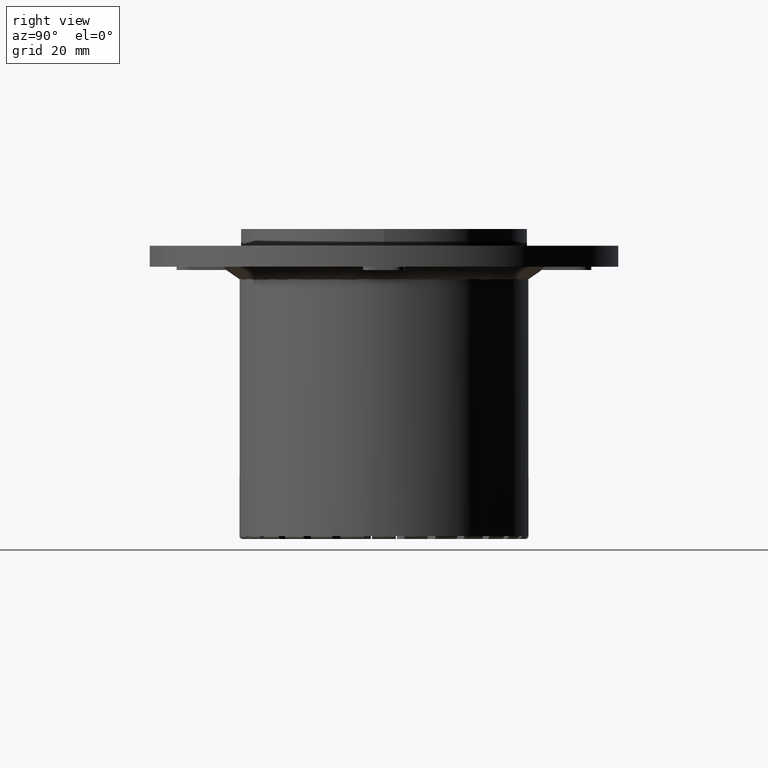
[diagram: clean part render]
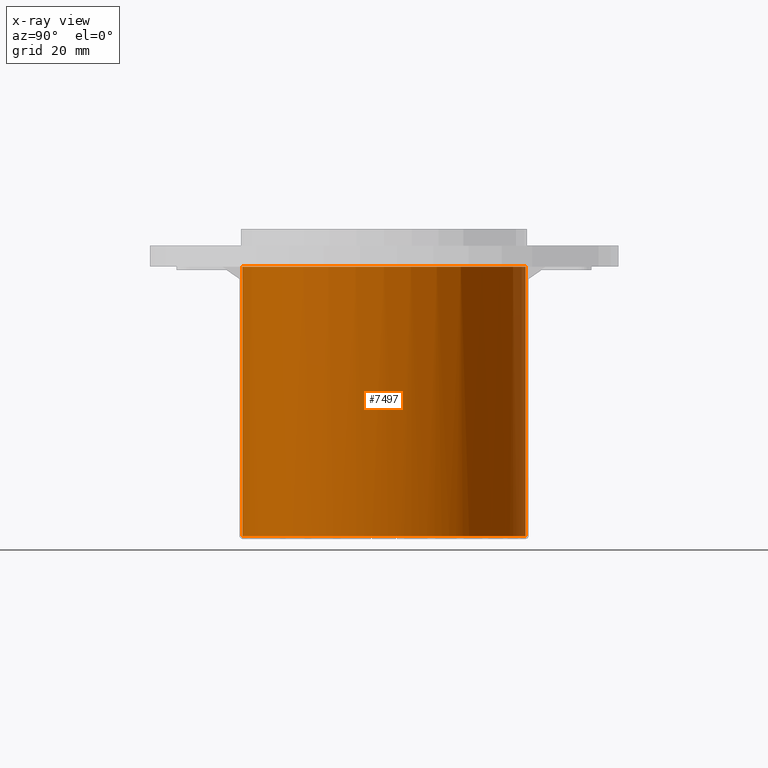
[diagram: x-ray — body ghosted, one internal face saturated and labeled with its STEP entity id]
A machine part, right view, then the same camera in x-ray: the body is ghosted and one INTERNAL B-rep face — a face not visible from any outside direction — is saturated and labeled: STEP entity #7497.
In plain terms, the highlighted cylindrical surface (bore or boss wall) has radius 33.8 mm, axis along (0, 0, 1).
Its self-contained STEP definition (entity closure, byte-faithful):
#747=CARTESIAN_POINT('',(10.272967348810127,32.201027030985841,0.0));
#748=VERTEX_POINT('',#747);
#1472=CARTESIAN_POINT('',(17.180805218574996,29.10772976446955,0.0));
#1473=VERTEX_POINT('',#1472);
#1557=CARTESIAN_POINT('',(23.227125773885678,24.554849384268188,0.0));
#1558=VERTEX_POINT('',#1557);
#1642=CARTESIAN_POINT('',(28.108741254862977,18.770686323817902,0.0));
#1643=VERTEX_POINT('',#1642);
#1727=CARTESIAN_POINT('',(31.580867077439628,12.045282671531204,0.0));
#1728=VERTEX_POINT('',#1727);
#1812=CARTESIAN_POINT('',(33.46939635453684,4.715878249373728,0.0));
#1813=VERTEX_POINT('',#1812);
#1897=CARTESIAN_POINT('',(33.679630342389451,-2.850000000000001,0.0));
#1898=VERTEX_POINT('',#1897);
#1982=CARTESIAN_POINT('',(32.201027030985841,-10.272967348810123,0.0));
#1983=VERTEX_POINT('',#1982);
#2067=CARTESIAN_POINT('',(29.10772976446955,-17.180805218574996,0.0));
#2068=VERTEX_POINT('',#2067);
#2152=CARTESIAN_POINT('',(24.554849384268188,-23.227125773885678,0.0));
#2153=VERTEX_POINT('',#2152);
#2237=CARTESIAN_POINT('',(18.770686323817902,-28.108741254862977,0.0));
#2238=VERTEX_POINT('',#2237);
#2322=CARTESIAN_POINT('',(12.045282671531204,-31.580867077439628,0.0));
#2323=VERTEX_POINT('',#2322);
#2407=CARTESIAN_POINT('',(4.715878249373731,-33.46939635453684,0.0));
#2408=VERTEX_POINT('',#2407);
#2492=CARTESIAN_POINT('',(-2.849999999999997,-33.679630342389451,0.0));
#2493=VERTEX_POINT('',#2492);
#2577=CARTESIAN_POINT('',(-10.272967348810123,-32.201027030985841,0.0));
#2578=VERTEX_POINT('',#2577);
#2662=CARTESIAN_POINT('',(-17.180805218574992,-29.10772976446955,0.0));
#2663=VERTEX_POINT('',#2662);
#2747=CARTESIAN_POINT('',(-23.227125773885675,-24.554849384268191,0.0));
#2748=VERTEX_POINT('',#2747);
#2832=CARTESIAN_POINT('',(-28.10874125486297,-18.770686323817905,0.0));
#2833=VERTEX_POINT('',#2832);
#2917=CARTESIAN_POINT('',(-31.580867077439628,-12.045282671531204,0.0));
#2918=VERTEX_POINT('',#2917);
#3002=CARTESIAN_POINT('',(-33.46939635453684,-4.715878249373732,0.0));
#3003=VERTEX_POINT('',#3002);
#3087=CARTESIAN_POINT('',(-33.679630342389451,2.849999999999997,0.0));
#3088=VERTEX_POINT('',#3087);
#3172=CARTESIAN_POINT('',(-32.201027030985841,10.272967348810123,0.0));
#3173=VERTEX_POINT('',#3172);
#3257=CARTESIAN_POINT('',(-29.10772976446955,17.180805218574989,0.0));
#3258=VERTEX_POINT('',#3257);
#3342=CARTESIAN_POINT('',(-24.554849384268195,23.227125773885668,0.0));
#3343=VERTEX_POINT('',#3342);
#3427=CARTESIAN_POINT('',(-18.770686323817905,28.10874125486297,0.0));
#3428=VERTEX_POINT('',#3427);
#3512=CARTESIAN_POINT('',(-12.045282671531208,31.580867077439628,0.0));
#3513=VERTEX_POINT('',#3512);
#3613=CARTESIAN_POINT('',(-10.272967348810127,32.201027030985841,0.0));
#3614=VERTEX_POINT('',#3613);
#3674=CARTESIAN_POINT('',(4.715878249373729,33.46939635453684,0.0));
#3675=VERTEX_POINT('',#3674);
#3708=CARTESIAN_POINT('',(0.0,0.0,0.0));
#3709=DIRECTION('',(0.0,0.0,1.0));
#3710=DIRECTION('',(-1.0,0.0,0.0));
#3711=AXIS2_PLACEMENT_3D('',#3708,#3709,#3710);
#3712=CIRCLE('',#3711,33.800000000000004);
#3713=EDGE_CURVE('',#748,#3675,#3712,.T.);
#3765=CARTESIAN_POINT('',(12.045282671531208,31.580867077439628,0.0));
#3766=VERTEX_POINT('',#3765);
#3799=CARTESIAN_POINT('',(0.0,0.0,0.0));
#3800=DIRECTION('',(0.0,0.0,1.0));
#3801=DIRECTION('',(-1.0,0.0,0.0));
#3802=AXIS2_PLACEMENT_3D('',#3799,#3800,#3801);
#3803=CIRCLE('',#3802,33.800000000000004);
#3804=EDGE_CURVE('',#1473,#3766,#3803,.T.);
#3856=CARTESIAN_POINT('',(18.770686323817905,28.108741254862974,0.0));
#3857=VERTEX_POINT('',#3856);
#3890=CARTESIAN_POINT('',(0.0,0.0,0.0));
#3891=DIRECTION('',(0.0,0.0,1.0));
#3892=DIRECTION('',(-1.0,0.0,0.0));
#3893=AXIS2_PLACEMENT_3D('',#3890,#3891,#3892);
#3894=CIRCLE('',#3893,33.800000000000004);
#3895=EDGE_CURVE('',#1558,#3857,#3894,.T.);
#3947=CARTESIAN_POINT('',(24.554849384268191,23.227125773885675,0.0));
#3948=VERTEX_POINT('',#3947);
#3981=CARTESIAN_POINT('',(0.0,0.0,0.0));
#3982=DIRECTION('',(0.0,0.0,1.0));
#3983=DIRECTION('',(-1.0,0.0,0.0));
#3984=AXIS2_PLACEMENT_3D('',#3981,#3982,#3983);
#3985=CIRCLE('',#3984,33.800000000000004);
#3986=EDGE_CURVE('',#1643,#3948,#3985,.T.);
#4038=CARTESIAN_POINT('',(29.10772976446955,17.180805218574989,0.0));
#4039=VERTEX_POINT('',#4038);
#4072=CARTESIAN_POINT('',(0.0,0.0,0.0));
#4073=DIRECTION('',(0.0,0.0,1.0));
#4074=DIRECTION('',(-1.0,0.0,0.0));
#4075=AXIS2_PLACEMENT_3D('',#4072,#4073,#4074);
#4076=CIRCLE('',#4075,33.800000000000004);
#4077=EDGE_CURVE('',#1728,#4039,#4076,.T.);
#4129=CARTESIAN_POINT('',(32.201027030985848,10.272967348810123,0.0));
#4130=VERTEX_POINT('',#4129);
#4163=CARTESIAN_POINT('',(0.0,0.0,0.0));
#4164=DIRECTION('',(0.0,0.0,1.0));
#4165=DIRECTION('',(-1.0,0.0,0.0));
#4166=AXIS2_PLACEMENT_3D('',#4163,#4164,#4165);
#4167=CIRCLE('',#4166,33.800000000000004);
#4168=EDGE_CURVE('',#1813,#4130,#4167,.T.);
#4220=CARTESIAN_POINT('',(33.679630342389451,2.850000000000001,0.0));
#4221=VERTEX_POINT('',#4220);
#4254=CARTESIAN_POINT('',(0.0,0.0,0.0));
#4255=DIRECTION('',(0.0,0.0,1.0));
#4256=DIRECTION('',(-1.0,0.0,0.0));
#4257=AXIS2_PLACEMENT_3D('',#4254,#4255,#4256);
#4258=CIRCLE('',#4257,33.800000000000004);
#4259=EDGE_CURVE('',#1898,#4221,#4258,.T.);
#4311=CARTESIAN_POINT('',(33.46939635453684,-4.715878249373724,0.0));
#4312=VERTEX_POINT('',#4311);
#4345=CARTESIAN_POINT('',(0.0,0.0,0.0));
#4346=DIRECTION('',(0.0,0.0,1.0));
#4347=DIRECTION('',(-1.0,0.0,0.0));
#4348=AXIS2_PLACEMENT_3D('',#4345,#4346,#4347);
#4349=CIRCLE('',#4348,33.800000000000004);
#4350=EDGE_CURVE('',#1983,#4312,#4349,.T.);
#4402=CARTESIAN_POINT('',(31.580867077439628,-12.045282671531208,0.0));
#4403=VERTEX_POINT('',#4402);
#4436=CARTESIAN_POINT('',(0.0,0.0,0.0));
#4437=DIRECTION('',(0.0,0.0,1.0));
#4438=DIRECTION('',(-1.0,0.0,0.0));
#4439=AXIS2_PLACEMENT_3D('',#4436,#4437,#4438);
#4440=CIRCLE('',#4439,33.800000000000004);
#4441=EDGE_CURVE('',#2068,#4403,#4440,.T.);
#4493=CARTESIAN_POINT('',(28.108741254862974,-18.770686323817905,0.0));
#4494=VERTEX_POINT('',#4493);
#4527=CARTESIAN_POINT('',(0.0,0.0,0.0));
#4528=DIRECTION('',(0.0,0.0,1.0));
#4529=DIRECTION('',(-1.0,0.0,0.0));
#4530=AXIS2_PLACEMENT_3D('',#4527,#4528,#4529);
#4531=CIRCLE('',#4530,33.800000000000004);
#4532=EDGE_CURVE('',#2153,#4494,#4531,.T.);
#4584=CARTESIAN_POINT('',(23.227125773885675,-24.554849384268191,0.0));
#4585=VERTEX_POINT('',#4584);
#4618=CARTESIAN_POINT('',(0.0,0.0,0.0));
#4619=DIRECTION('',(0.0,0.0,1.0));
#4620=DIRECTION('',(-1.0,0.0,0.0));
#4621=AXIS2_PLACEMENT_3D('',#4618,#4619,#4620);
#4622=CIRCLE('',#4621,33.800000000000004);
#4623=EDGE_CURVE('',#2238,#4585,#4622,.T.);
#4675=CARTESIAN_POINT('',(17.180805218574996,-29.10772976446955,0.0));
#4676=VERTEX_POINT('',#4675);
#4709=CARTESIAN_POINT('',(0.0,0.0,0.0));
#4710=DIRECTION('',(0.0,0.0,1.0));
#4711=DIRECTION('',(-1.0,0.0,0.0));
#4712=AXIS2_PLACEMENT_3D('',#4709,#4710,#4711);
#4713=CIRCLE('',#4712,33.800000000000004);
#4714=EDGE_CURVE('',#2323,#4676,#4713,.T.);
#4766=CARTESIAN_POINT('',(10.272967348810123,-32.201027030985841,0.0));
#4767=VERTEX_POINT('',#4766);
#4800=CARTESIAN_POINT('',(0.0,0.0,0.0));
#4801=DIRECTION('',(0.0,0.0,1.0));
#4802=DIRECTION('',(-1.0,0.0,0.0));
#4803=AXIS2_PLACEMENT_3D('',#4800,#4801,#4802);
#4804=CIRCLE('',#4803,33.800000000000004);
#4805=EDGE_CURVE('',#2408,#4767,#4804,.T.);
#4857=CARTESIAN_POINT('',(2.850000000000001,-33.679630342389451,0.0));
#4858=VERTEX_POINT('',#4857);
#4891=CARTESIAN_POINT('',(0.0,0.0,0.0));
#4892=DIRECTION('',(0.0,0.0,1.0));
#4893=DIRECTION('',(-1.0,0.0,0.0));
#4894=AXIS2_PLACEMENT_3D('',#4891,#4892,#4893);
#4895=CIRCLE('',#4894,33.800000000000004);
#4896=EDGE_CURVE('',#2493,#4858,#4895,.T.);
#4948=CARTESIAN_POINT('',(-4.715878249373726,-33.46939635453684,0.0));
#4949=VERTEX_POINT('',#4948);
#4982=CARTESIAN_POINT('',(0.0,0.0,0.0));
#4983=DIRECTION('',(0.0,0.0,1.0));
#4984=DIRECTION('',(-1.0,0.0,0.0));
#4985=AXIS2_PLACEMENT_3D('',#4982,#4983,#4984);
#4986=CIRCLE('',#4985,33.800000000000004);
#4987=EDGE_CURVE('',#2578,#4949,#4986,.T.);
#5039=CARTESIAN_POINT('',(-12.045282671531206,-31.580867077439628,0.0));
#5040=VERTEX_POINT('',#5039);
#5073=CARTESIAN_POINT('',(0.0,0.0,0.0));
#5074=DIRECTION('',(0.0,0.0,1.0));
#5075=DIRECTION('',(-1.0,0.0,0.0));
#5076=AXIS2_PLACEMENT_3D('',#5073,#5074,#5075);
#5077=CIRCLE('',#5076,33.800000000000004);
#5078=EDGE_CURVE('',#2663,#5040,#5077,.T.);
#5130=CARTESIAN_POINT('',(-18.770686323817898,-28.10874125486297,0.0));
#5131=VERTEX_POINT('',#5130);
#5164=CARTESIAN_POINT('',(0.0,0.0,0.0));
#5165=DIRECTION('',(0.0,0.0,1.0));
#5166=DIRECTION('',(-1.0,0.0,0.0));
#5167=AXIS2_PLACEMENT_3D('',#5164,#5165,#5166);
#5168=CIRCLE('',#5167,33.800000000000004);
#5169=EDGE_CURVE('',#2748,#5131,#5168,.T.);
#5221=CARTESIAN_POINT('',(-24.554849384268191,-23.227125773885675,0.0));
#5222=VERTEX_POINT('',#5221);
#5255=CARTESIAN_POINT('',(0.0,0.0,0.0));
#5256=DIRECTION('',(0.0,0.0,1.0));
#5257=DIRECTION('',(-1.0,0.0,0.0));
#5258=AXIS2_PLACEMENT_3D('',#5255,#5256,#5257);
#5259=CIRCLE('',#5258,33.800000000000004);
#5260=EDGE_CURVE('',#2833,#5222,#5259,.T.);
#5312=CARTESIAN_POINT('',(-29.10772976446955,-17.180805218574996,0.0));
#5313=VERTEX_POINT('',#5312);
#5346=CARTESIAN_POINT('',(0.0,0.0,0.0));
#5347=DIRECTION('',(0.0,0.0,1.0));
#5348=DIRECTION('',(-1.0,0.0,0.0));
#5349=AXIS2_PLACEMENT_3D('',#5346,#5347,#5348);
#5350=CIRCLE('',#5349,33.800000000000004);
#5351=EDGE_CURVE('',#2918,#5313,#5350,.T.);
#5403=CARTESIAN_POINT('',(-32.201027030985841,-10.272967348810125,0.0));
#5404=VERTEX_POINT('',#5403);
#5437=CARTESIAN_POINT('',(0.0,0.0,0.0));
#5438=DIRECTION('',(0.0,0.0,1.0));
#5439=DIRECTION('',(-1.0,0.0,0.0));
#5440=AXIS2_PLACEMENT_3D('',#5437,#5438,#5439);
#5441=CIRCLE('',#5440,33.800000000000004);
#5442=EDGE_CURVE('',#3003,#5404,#5441,.T.);
#5494=CARTESIAN_POINT('',(-33.679630342389451,-2.850000000000002,0.0));
#5495=VERTEX_POINT('',#5494);
#5528=CARTESIAN_POINT('',(0.0,0.0,0.0));
#5529=DIRECTION('',(0.0,0.0,1.0));
#5530=DIRECTION('',(-1.0,0.0,0.0));
#5531=AXIS2_PLACEMENT_3D('',#5528,#5529,#5530);
#5532=CIRCLE('',#5531,33.800000000000004);
#5533=EDGE_CURVE('',#3088,#5495,#5532,.T.);
#5585=CARTESIAN_POINT('',(-33.46939635453684,4.715878249373725,0.0));
#5586=VERTEX_POINT('',#5585);
#5619=CARTESIAN_POINT('',(0.0,0.0,0.0));
#5620=DIRECTION('',(0.0,0.0,1.0));
#5621=DIRECTION('',(-1.0,0.0,0.0));
#5622=AXIS2_PLACEMENT_3D('',#5619,#5620,#5621);
#5623=CIRCLE('',#5622,33.800000000000004);
#5624=EDGE_CURVE('',#3173,#5586,#5623,.T.);
#5676=CARTESIAN_POINT('',(-31.580867077439628,12.045282671531201,0.0));
#5677=VERTEX_POINT('',#5676);
#5710=CARTESIAN_POINT('',(0.0,0.0,0.0));
#5711=DIRECTION('',(0.0,0.0,1.0));
#5712=DIRECTION('',(-1.0,0.0,0.0));
#5713=AXIS2_PLACEMENT_3D('',#5710,#5711,#5712);
#5714=CIRCLE('',#5713,33.800000000000004);
#5715=EDGE_CURVE('',#3258,#5677,#5714,.T.);
#5767=CARTESIAN_POINT('',(-28.10874125486297,18.770686323817902,0.0));
#5768=VERTEX_POINT('',#5767);
#5801=CARTESIAN_POINT('',(0.0,0.0,0.0));
#5802=DIRECTION('',(0.0,0.0,1.0));
#5803=DIRECTION('',(-1.0,0.0,0.0));
#5804=AXIS2_PLACEMENT_3D('',#5801,#5802,#5803);
#5805=CIRCLE('',#5804,33.800000000000004);
#5806=EDGE_CURVE('',#3343,#5768,#5805,.T.);
#5858=CARTESIAN_POINT('',(-23.227125773885682,24.554849384268181,0.0));
#5859=VERTEX_POINT('',#5858);
#5892=CARTESIAN_POINT('',(0.0,0.0,0.0));
#5893=DIRECTION('',(0.0,0.0,1.0));
#5894=DIRECTION('',(-1.0,0.0,0.0));
#5895=AXIS2_PLACEMENT_3D('',#5892,#5893,#5894);
#5896=CIRCLE('',#5895,33.800000000000004);
#5897=EDGE_CURVE('',#3428,#5859,#5896,.T.);
#5949=CARTESIAN_POINT('',(-17.180805218574996,29.10772976446955,0.0));
#5950=VERTEX_POINT('',#5949);
#5983=CARTESIAN_POINT('',(0.0,0.0,0.0));
#5984=DIRECTION('',(0.0,0.0,1.0));
#5985=DIRECTION('',(-1.0,0.0,0.0));
#5986=AXIS2_PLACEMENT_3D('',#5983,#5984,#5985);
#5987=CIRCLE('',#5986,33.800000000000004);
#5988=EDGE_CURVE('',#3513,#5950,#5987,.T.);
#6033=CARTESIAN_POINT('',(-4.715878249373734,33.46939635453684,0.0));
#6034=VERTEX_POINT('',#6033);
#6074=CARTESIAN_POINT('',(0.0,0.0,0.0));
#6075=DIRECTION('',(0.0,0.0,1.0));
#6076=DIRECTION('',(-1.0,0.0,0.0));
#6077=AXIS2_PLACEMENT_3D('',#6074,#6075,#6076);
#6078=CIRCLE('',#6077,33.800000000000004);
#6079=EDGE_CURVE('',#6034,#3614,#6078,.T.);
#6094=CARTESIAN_POINT('',(-2.850000000000005,33.679630342389451,0.0));
#6095=VERTEX_POINT('',#6094);
#6102=CARTESIAN_POINT('',(0.0,0.0,0.0));
#6103=DIRECTION('',(0.0,0.0,1.0));
#6104=DIRECTION('',(-1.0,0.0,0.0));
#6105=AXIS2_PLACEMENT_3D('',#6102,#6103,#6104);
#6106=CIRCLE('',#6105,33.800000000000004);
#6107=EDGE_CURVE('',#6095,#6034,#6106,.T.);
#6120=CARTESIAN_POINT('',(0.0,0.0,0.0));
#6121=DIRECTION('',(0.0,0.0,1.0));
#6122=DIRECTION('',(-1.0,0.0,0.0));
#6123=AXIS2_PLACEMENT_3D('',#6120,#6121,#6122);
#6124=CIRCLE('',#6123,33.800000000000004);
#6125=EDGE_CURVE('',#3614,#3513,#6124,.T.);
#6138=CARTESIAN_POINT('',(0.0,0.0,0.0));
#6139=DIRECTION('',(0.0,0.0,1.0));
#6140=DIRECTION('',(-1.0,0.0,0.0));
#6141=AXIS2_PLACEMENT_3D('',#6138,#6139,#6140);
#6142=CIRCLE('',#6141,33.800000000000004);
#6143=EDGE_CURVE('',#5950,#3428,#6142,.T.);
#6156=CARTESIAN_POINT('',(0.0,0.0,0.0));
#6157=DIRECTION('',(0.0,0.0,1.0));
#6158=DIRECTION('',(-1.0,0.0,0.0));
#6159=AXIS2_PLACEMENT_3D('',#6156,#6157,#6158);
#6160=CIRCLE('',#6159,33.800000000000004);
#6161=EDGE_CURVE('',#5859,#3343,#6160,.T.);
#6174=CARTESIAN_POINT('',(0.0,0.0,0.0));
#6175=DIRECTION('',(0.0,0.0,1.0));
#6176=DIRECTION('',(-1.0,0.0,0.0));
#6177=AXIS2_PLACEMENT_3D('',#6174,#6175,#6176);
#6178=CIRCLE('',#6177,33.800000000000004);
#6179=EDGE_CURVE('',#5768,#3258,#6178,.T.);
#6192=CARTESIAN_POINT('',(0.0,0.0,0.0));
#6193=DIRECTION('',(0.0,0.0,1.0));
#6194=DIRECTION('',(-1.0,0.0,0.0));
#6195=AXIS2_PLACEMENT_3D('',#6192,#6193,#6194);
#6196=CIRCLE('',#6195,33.800000000000004);
#6197=EDGE_CURVE('',#5677,#3173,#6196,.T.);
#6210=CARTESIAN_POINT('',(0.0,0.0,0.0));
#6211=DIRECTION('',(0.0,0.0,1.0));
#6212=DIRECTION('',(-1.0,0.0,0.0));
#6213=AXIS2_PLACEMENT_3D('',#6210,#6211,#6212);
#6214=CIRCLE('',#6213,33.800000000000004);
#6215=EDGE_CURVE('',#5586,#3088,#6214,.T.);
#6228=CARTESIAN_POINT('',(0.0,0.0,0.0));
#6229=DIRECTION('',(0.0,0.0,1.0));
#6230=DIRECTION('',(-1.0,0.0,0.0));
#6231=AXIS2_PLACEMENT_3D('',#6228,#6229,#6230);
#6232=CIRCLE('',#6231,33.800000000000004);
#6233=EDGE_CURVE('',#5495,#3003,#6232,.T.);
#6246=CARTESIAN_POINT('',(0.0,0.0,0.0));
#6247=DIRECTION('',(0.0,0.0,1.0));
#6248=DIRECTION('',(-1.0,0.0,0.0));
#6249=AXIS2_PLACEMENT_3D('',#6246,#6247,#6248);
#6250=CIRCLE('',#6249,33.800000000000004);
#6251=EDGE_CURVE('',#5404,#2918,#6250,.T.);
#6264=CARTESIAN_POINT('',(0.0,0.0,0.0));
#6265=DIRECTION('',(0.0,0.0,1.0));
#6266=DIRECTION('',(-1.0,0.0,0.0));
#6267=AXIS2_PLACEMENT_3D('',#6264,#6265,#6266);
#6268=CIRCLE('',#6267,33.800000000000004);
#6269=EDGE_CURVE('',#5313,#2833,#6268,.T.);
#6282=CARTESIAN_POINT('',(0.0,0.0,0.0));
#6283=DIRECTION('',(0.0,0.0,1.0));
#6284=DIRECTION('',(-1.0,0.0,0.0));
#6285=AXIS2_PLACEMENT_3D('',#6282,#6283,#6284);
#6286=CIRCLE('',#6285,33.800000000000004);
#6287=EDGE_CURVE('',#5222,#2748,#6286,.T.);
#6300=CARTESIAN_POINT('',(0.0,0.0,0.0));
#6301=DIRECTION('',(0.0,0.0,1.0));
#6302=DIRECTION('',(-1.0,0.0,0.0));
#6303=AXIS2_PLACEMENT_3D('',#6300,#6301,#6302);
#6304=CIRCLE('',#6303,33.800000000000004);
#6305=EDGE_CURVE('',#5131,#2663,#6304,.T.);
#6318=CARTESIAN_POINT('',(0.0,0.0,0.0));
#6319=DIRECTION('',(0.0,0.0,1.0));
#6320=DIRECTION('',(-1.0,0.0,0.0));
#6321=AXIS2_PLACEMENT_3D('',#6318,#6319,#6320);
#6322=CIRCLE('',#6321,33.800000000000004);
#6323=EDGE_CURVE('',#5040,#2578,#6322,.T.);
#6336=CARTESIAN_POINT('',(0.0,0.0,0.0));
#6337=DIRECTION('',(0.0,0.0,1.0));
#6338=DIRECTION('',(-1.0,0.0,0.0));
#6339=AXIS2_PLACEMENT_3D('',#6336,#6337,#6338);
#6340=CIRCLE('',#6339,33.800000000000004);
#6341=EDGE_CURVE('',#4949,#2493,#6340,.T.);
#6354=CARTESIAN_POINT('',(0.0,0.0,0.0));
#6355=DIRECTION('',(0.0,0.0,1.0));
#6356=DIRECTION('',(-1.0,0.0,0.0));
#6357=AXIS2_PLACEMENT_3D('',#6354,#6355,#6356);
#6358=CIRCLE('',#6357,33.800000000000004);
#6359=EDGE_CURVE('',#4858,#2408,#6358,.T.);
#6372=CARTESIAN_POINT('',(0.0,0.0,0.0));
#6373=DIRECTION('',(0.0,0.0,1.0));
#6374=DIRECTION('',(-1.0,0.0,0.0));
#6375=AXIS2_PLACEMENT_3D('',#6372,#6373,#6374);
#6376=CIRCLE('',#6375,33.800000000000004);
#6377=EDGE_CURVE('',#4767,#2323,#6376,.T.);
#6390=CARTESIAN_POINT('',(0.0,0.0,0.0));
#6391=DIRECTION('',(0.0,0.0,1.0));
#6392=DIRECTION('',(-1.0,0.0,0.0));
#6393=AXIS2_PLACEMENT_3D('',#6390,#6391,#6392);
#6394=CIRCLE('',#6393,33.800000000000004);
#6395=EDGE_CURVE('',#4676,#2238,#6394,.T.);
#6408=CARTESIAN_POINT('',(0.0,0.0,0.0));
#6409=DIRECTION('',(0.0,0.0,1.0));
#6410=DIRECTION('',(-1.0,0.0,0.0));
#6411=AXIS2_PLACEMENT_3D('',#6408,#6409,#6410);
#6412=CIRCLE('',#6411,33.800000000000004);
#6413=EDGE_CURVE('',#4585,#2153,#6412,.T.);
#6426=CARTESIAN_POINT('',(0.0,0.0,0.0));
#6427=DIRECTION('',(0.0,0.0,1.0));
#6428=DIRECTION('',(-1.0,0.0,0.0));
#6429=AXIS2_PLACEMENT_3D('',#6426,#6427,#6428);
#6430=CIRCLE('',#6429,33.800000000000004);
#6431=EDGE_CURVE('',#4494,#2068,#6430,.T.);
#6444=CARTESIAN_POINT('',(0.0,0.0,0.0));
#6445=DIRECTION('',(0.0,0.0,1.0));
#6446=DIRECTION('',(-1.0,0.0,0.0));
#6447=AXIS2_PLACEMENT_3D('',#6444,#6445,#6446);
#6448=CIRCLE('',#6447,33.800000000000004);
#6449=EDGE_CURVE('',#4403,#1983,#6448,.T.);
#6462=CARTESIAN_POINT('',(0.0,0.0,0.0));
#6463=DIRECTION('',(0.0,0.0,1.0));
#6464=DIRECTION('',(-1.0,0.0,0.0));
#6465=AXIS2_PLACEMENT_3D('',#6462,#6463,#6464);
#6466=CIRCLE('',#6465,33.800000000000004);
#6467=EDGE_CURVE('',#4312,#1898,#6466,.T.);
#6480=CARTESIAN_POINT('',(0.0,0.0,0.0));
#6481=DIRECTION('',(0.0,0.0,1.0));
#6482=DIRECTION('',(-1.0,0.0,0.0));
#6483=AXIS2_PLACEMENT_3D('',#6480,#6481,#6482);
#6484=CIRCLE('',#6483,33.800000000000004);
#6485=EDGE_CURVE('',#4221,#1813,#6484,.T.);
#6498=CARTESIAN_POINT('',(0.0,0.0,0.0));
#6499=DIRECTION('',(0.0,0.0,1.0));
#6500=DIRECTION('',(-1.0,0.0,0.0));
#6501=AXIS2_PLACEMENT_3D('',#6498,#6499,#6500);
#6502=CIRCLE('',#6501,33.800000000000004);
#6503=EDGE_CURVE('',#4130,#1728,#6502,.T.);
#6516=CARTESIAN_POINT('',(0.0,0.0,0.0));
#6517=DIRECTION('',(0.0,0.0,1.0));
#6518=DIRECTION('',(-1.0,0.0,0.0));
#6519=AXIS2_PLACEMENT_3D('',#6516,#6517,#6518);
#6520=CIRCLE('',#6519,33.800000000000004);
#6521=EDGE_CURVE('',#4039,#1643,#6520,.T.);
#6534=CARTESIAN_POINT('',(0.0,0.0,0.0));
#6535=DIRECTION('',(0.0,0.0,1.0));
#6536=DIRECTION('',(-1.0,0.0,0.0));
#6537=AXIS2_PLACEMENT_3D('',#6534,#6535,#6536);
#6538=CIRCLE('',#6537,33.800000000000004);
#6539=EDGE_CURVE('',#3948,#1558,#6538,.T.);
#6552=CARTESIAN_POINT('',(0.0,0.0,0.0));
#6553=DIRECTION('',(0.0,0.0,1.0));
#6554=DIRECTION('',(-1.0,0.0,0.0));
#6555=AXIS2_PLACEMENT_3D('',#6552,#6553,#6554);
#6556=CIRCLE('',#6555,33.800000000000004);
#6557=EDGE_CURVE('',#3857,#1473,#6556,.T.);
#6570=CARTESIAN_POINT('',(0.0,0.0,0.0));
#6571=DIRECTION('',(0.0,0.0,1.0));
#6572=DIRECTION('',(-1.0,0.0,0.0));
#6573=AXIS2_PLACEMENT_3D('',#6570,#6571,#6572);
#6574=CIRCLE('',#6573,33.800000000000004);
#6575=EDGE_CURVE('',#3766,#748,#6574,.T.);
#6586=CARTESIAN_POINT('',(2.849999999999995,33.679630342389451,0.0));
#6587=VERTEX_POINT('',#6586);
#6588=CARTESIAN_POINT('',(0.0,0.0,0.0));
#6589=DIRECTION('',(0.0,0.0,1.0));
#6590=DIRECTION('',(-1.0,0.0,0.0));
#6591=AXIS2_PLACEMENT_3D('',#6588,#6589,#6590);
#6592=CIRCLE('',#6591,33.800000000000004);
#6593=EDGE_CURVE('',#3675,#6587,#6592,.T.);
#7410=CARTESIAN_POINT('',(0.0,0.0,0.0));
#7411=DIRECTION('',(0.0,0.0,1.0));
#7412=DIRECTION('',(-1.0,0.0,0.0));
#7413=AXIS2_PLACEMENT_3D('',#7410,#7411,#7412);
#7414=CIRCLE('',#7413,33.800000000000004);
#7415=EDGE_CURVE('',#6587,#6095,#7414,.T.);
#7423=CARTESIAN_POINT('',(0.0,0.0,0.0));
#7424=DIRECTION('',(0.0,0.0,1.0));
#7425=DIRECTION('',(-1.0,0.0,0.0));
#7426=AXIS2_PLACEMENT_3D('',#7423,#7424,#7425);
#7427=CYLINDRICAL_SURFACE('',#7426,33.800000000000004);
#7428=CARTESIAN_POINT('',(33.800000000000004,4.139306E-015,64.299999999999997));
#7429=VERTEX_POINT('',#7428);
#7430=CARTESIAN_POINT('',(0.0,0.0,64.299999999999997));
#7431=DIRECTION('',(0.0,0.0,-1.0));
#7432=DIRECTION('',(-1.0,0.0,0.0));
#7433=AXIS2_PLACEMENT_3D('',#7430,#7431,#7432);
#7434=CIRCLE('',#7433,33.800000000000004);
#7435=EDGE_CURVE('',#7429,#7429,#7434,.T.);
#7436=ORIENTED_EDGE('',*,*,#7435,.F.);
#7437=EDGE_LOOP('',(#7436));
#7438=FACE_OUTER_BOUND('',#7437,.T.);
#7439=ORIENTED_EDGE('',*,*,#6107,.F.);
#7440=ORIENTED_EDGE('',*,*,#7415,.F.);
#7441=ORIENTED_EDGE('',*,*,#6593,.F.);
#7442=ORIENTED_EDGE('',*,*,#3713,.F.);
#7443=ORIENTED_EDGE('',*,*,#6575,.F.);
#7444=ORIENTED_EDGE('',*,*,#3804,.F.);
#7445=ORIENTED_EDGE('',*,*,#6557,.F.);
#7446=ORIENTED_EDGE('',*,*,#3895,.F.);
#7447=ORIENTED_EDGE('',*,*,#6539,.F.);
#7448=ORIENTED_EDGE('',*,*,#3986,.F.);
#7449=ORIENTED_EDGE('',*,*,#6521,.F.);
#7450=ORIENTED_EDGE('',*,*,#4077,.F.);
#7451=ORIENTED_EDGE('',*,*,#6503,.F.);
#7452=ORIENTED_EDGE('',*,*,#4168,.F.);
#7453=ORIENTED_EDGE('',*,*,#6485,.F.);
#7454=ORIENTED_EDGE('',*,*,#4259,.F.);
#7455=ORIENTED_EDGE('',*,*,#6467,.F.);
#7456=ORIENTED_EDGE('',*,*,#4350,.F.);
#7457=ORIENTED_EDGE('',*,*,#6449,.F.);
#7458=ORIENTED_EDGE('',*,*,#4441,.F.);
#7459=ORIENTED_EDGE('',*,*,#6431,.F.);
#7460=ORIENTED_EDGE('',*,*,#4532,.F.);
#7461=ORIENTED_EDGE('',*,*,#6413,.F.);
#7462=ORIENTED_EDGE('',*,*,#4623,.F.);
#7463=ORIENTED_EDGE('',*,*,#6395,.F.);
#7464=ORIENTED_EDGE('',*,*,#4714,.F.);
#7465=ORIENTED_EDGE('',*,*,#6377,.F.);
#7466=ORIENTED_EDGE('',*,*,#4805,.F.);
#7467=ORIENTED_EDGE('',*,*,#6359,.F.);
#7468=ORIENTED_EDGE('',*,*,#4896,.F.);
#7469=ORIENTED_EDGE('',*,*,#6341,.F.);
#7470=ORIENTED_EDGE('',*,*,#4987,.F.);
#7471=ORIENTED_EDGE('',*,*,#6323,.F.);
#7472=ORIENTED_EDGE('',*,*,#5078,.F.);
#7473=ORIENTED_EDGE('',*,*,#6305,.F.);
#7474=ORIENTED_EDGE('',*,*,#5169,.F.);
#7475=ORIENTED_EDGE('',*,*,#6287,.F.);
#7476=ORIENTED_EDGE('',*,*,#5260,.F.);
#7477=ORIENTED_EDGE('',*,*,#6269,.F.);
#7478=ORIENTED_EDGE('',*,*,#5351,.F.);
#7479=ORIENTED_EDGE('',*,*,#6251,.F.);
#7480=ORIENTED_EDGE('',*,*,#5442,.F.);
#7481=ORIENTED_EDGE('',*,*,#6233,.F.);
#7482=ORIENTED_EDGE('',*,*,#5533,.F.);
#7483=ORIENTED_EDGE('',*,*,#6215,.F.);
#7484=ORIENTED_EDGE('',*,*,#5624,.F.);
#7485=ORIENTED_EDGE('',*,*,#6197,.F.);
#7486=ORIENTED_EDGE('',*,*,#5715,.F.);
#7487=ORIENTED_EDGE('',*,*,#6179,.F.);
#7488=ORIENTED_EDGE('',*,*,#5806,.F.);
#7489=ORIENTED_EDGE('',*,*,#6161,.F.);
#7490=ORIENTED_EDGE('',*,*,#5897,.F.);
#7491=ORIENTED_EDGE('',*,*,#6143,.F.);
#7492=ORIENTED_EDGE('',*,*,#5988,.F.);
#7493=ORIENTED_EDGE('',*,*,#6125,.F.);
#7494=ORIENTED_EDGE('',*,*,#6079,.F.);
#7495=EDGE_LOOP('',(#7439,#7440,#7441,#7442,#7443,#7444,#7445,#7446,#7447,#7448,#7449,#7450,#7451,#7452,#7453,#7454,#7455,#7456,#7457,#7458,#7459,#7460,#7461,#7462,#7463,#7464,#7465,#7466,#7467,#7468,#7469,#7470,#7471,#7472,#7473,#7474,#7475,#7476,#7477,#7478,#7479,#7480,#7481,#7482,#7483,#7484,#7485,#7486,#7487,#7488,#7489,#7490,#7491,#7492,#7493,#7494));
#7496=FACE_BOUND('',#7495,.T.);
#7497=ADVANCED_FACE('',(#7438,#7496),#7427,.F.);